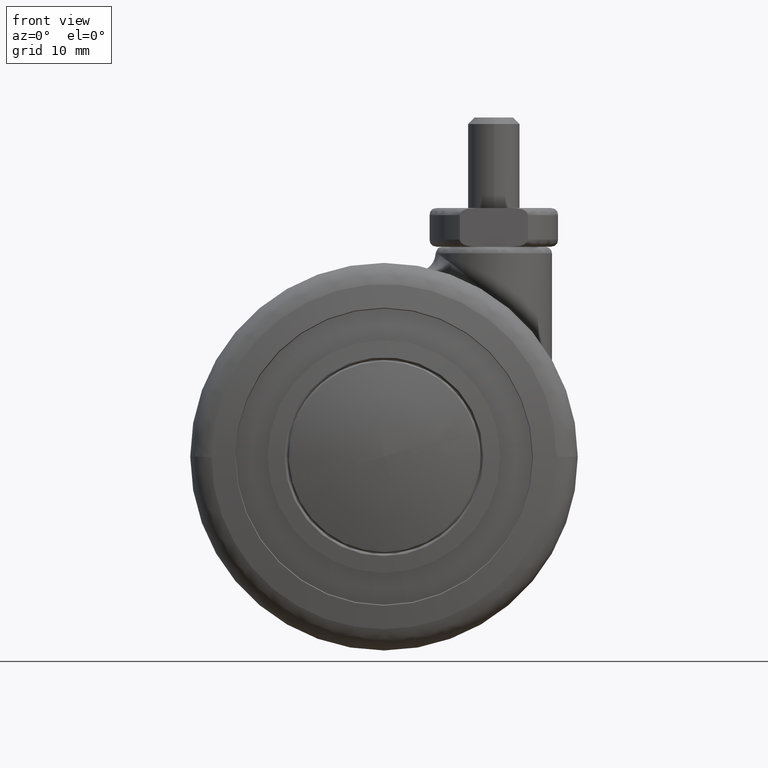
[diagram: clean part render]
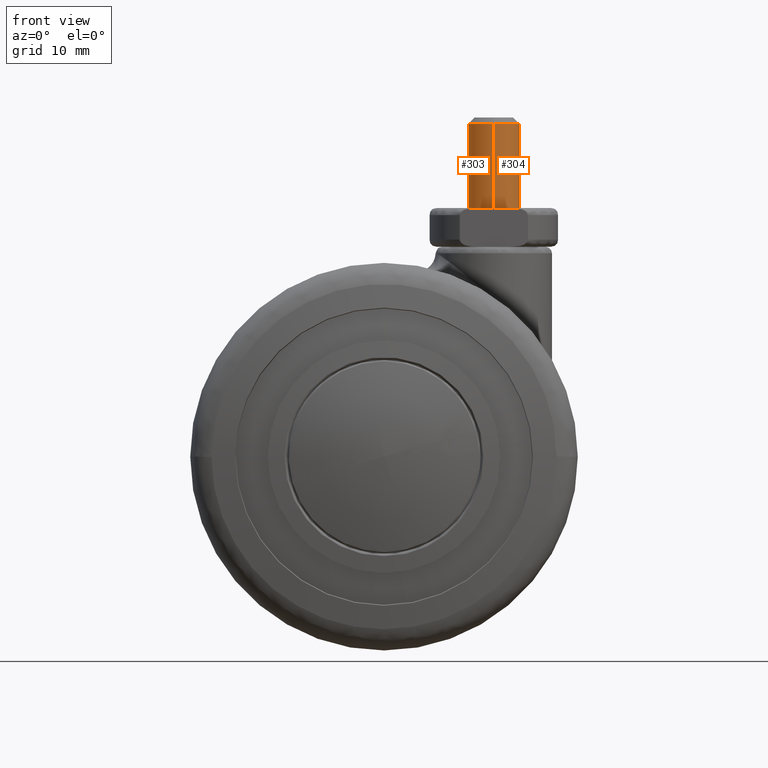
[diagram: same view with one multi-face feature highlighted, each face labeled with its STEP entity id]
A machine part, front view. The highlighted faces form ONE feature: a constant-radius fillet chain: 2 tangent blend faces with common blend radius 4 mm. The faces share edges in the B-rep.
Their STEP definitions:
[1] entity #303 (Cylinder):
#303=ADVANCED_FACE('',(#1776),#1775,.T.);
#1775=CYLINDRICAL_SURFACE('',#4466,4.00000000000E+00);
#1776=FACE_OUTER_BOUND('',#4467,.T.);
#4463=CARTESIAN_POINT('',(1.41500000060E+01,0.00000000000E+00,0.00000000000E+00));
#4464=DIRECTION('',(-1.00000000000E+00,-0.00000000000E+00,0.00000000000E+00));
#4465=DIRECTION('',(0.00000000000E+00,-0.00000000000E+00,1.00000000000E+00));
#4466=AXIS2_PLACEMENT_3D('',#4463,#4464,#4465);
#4467=EDGE_LOOP('',(#5205,#5206,#5207,#5208));
#5205=ORIENTED_EDGE('',*,*,#5578,.T.);
#5206=ORIENTED_EDGE('',*,*,#5579,.F.);
#5207=ORIENTED_EDGE('',*,*,#5507,.F.);
#5208=ORIENTED_EDGE('',*,*,#5580,.T.);
#5507=EDGE_CURVE('',#7488,#7489,#7490,.T.);
#5578=EDGE_CURVE('',#7958,#7959,#7960,.T.);
#5579=EDGE_CURVE('',#7489,#7959,#7966,.T.);
#5580=EDGE_CURVE('',#7488,#7958,#7972,.T.);
#7488=VERTEX_POINT('',#9550);
#7489=VERTEX_POINT('',#9551);
#7490=CIRCLE('',#9555,4.00000000000E+00);
#7958=VERTEX_POINT('',#10000);
#7959=VERTEX_POINT('',#10001);
#7960=CIRCLE('',#10005,4.00000000000E+00);
#7966=(BOUNDED_CURVE() B_SPLINE_CURVE(1,(#10006,#10007),.UNSPECIFIED.,.F.,.F.) B_SPLINE_CURVE_WITH_KNOTS((2,2),(8.33333343261E-02,9.16666667006E-01),.UNSPECIFIED.) CURVE() GEOMETRIC_REPRESENTATION_ITEM() RATIONAL_B_SPLINE_CURVE((1.00000000000E+00,1.00000000000E+00)) REPRESENTATION_ITEM('') );
#7972=(BOUNDED_CURVE() B_SPLINE_CURVE(1,(#10008,#10009),.UNSPECIFIED.,.F.,.F.) B_SPLINE_CURVE_WITH_KNOTS((2,2),(8.33333333333E-02,9.16666666667E-01),.UNSPECIFIED.) CURVE() GEOMETRIC_REPRESENTATION_ITEM() RATIONAL_B_SPLINE_CURVE((7.50000000000E-01,7.50000000000E-01)) REPRESENTATION_ITEM('') );
#9550=CARTESIAN_POINT('',(-6.00000000000E+00,0.00000000000E+00,-4.00000000000E+00));
#9551=CARTESIAN_POINT('',(-6.00000000000E+00,4.44089209850E-16,4.00000000000E+00));
#9552=CARTESIAN_POINT('',(-6.00000000000E+00,0.00000000000E+00,0.00000000000E+00));
#9553=DIRECTION('',(1.00000000000E+00,0.00000000000E+00,0.00000000000E+00));
#9554=DIRECTION('',(0.00000000000E+00,-1.22460635382E-16,-1.00000000000E+00));
#9555=AXIS2_PLACEMENT_3D('',#9552,#9553,#9554);
#10000=CARTESIAN_POINT('',(-1.90000000000E+01,0.00000000000E+00,-4.00000000000E+00));
#10001=CARTESIAN_POINT('',(-1.90000000000E+01,4.44089209850E-16,4.00000000000E+00));
#10002=CARTESIAN_POINT('',(-1.90000000000E+01,0.00000000000E+00,0.00000000000E+00));
#10003=DIRECTION('',(1.00000000000E+00,0.00000000000E+00,0.00000000000E+00));
#10004=DIRECTION('',(0.00000000000E+00,-1.22460635382E-16,-1.00000000000E+00));
#10005=AXIS2_PLACEMENT_3D('',#10002,#10003,#10004);
#10006=CARTESIAN_POINT('',(-6.00000001549E+00,0.00000000000E+00,4.00000000000E+00));
#10007=CARTESIAN_POINT('',(-1.90000000053E+01,0.00000000000E+00,4.00000000000E+00));
#10008=CARTESIAN_POINT('',(-6.00000000000E+00,-1.48029736617E-16,-4.00000000000E+00));
#10009=CARTESIAN_POINT('',(-1.90000000000E+01,-1.48029736617E-16,-4.00000000000E+00));
[2] entity #304 (Cylinder):
#304=ADVANCED_FACE('',(#1786),#1785,.T.);
#1785=CYLINDRICAL_SURFACE('',#4471,4.00000000000E+00);
#1786=FACE_OUTER_BOUND('',#4472,.T.);
#4468=CARTESIAN_POINT('',(1.41500000060E+01,0.00000000000E+00,0.00000000000E+00));
#4469=DIRECTION('',(-1.00000000000E+00,-0.00000000000E+00,0.00000000000E+00));
#4470=DIRECTION('',(0.00000000000E+00,-0.00000000000E+00,1.00000000000E+00));
#4471=AXIS2_PLACEMENT_3D('',#4468,#4469,#4470);
#4472=EDGE_LOOP('',(#5209,#5210,#5211,#5212));
#5209=ORIENTED_EDGE('',*,*,#5508,.F.);
#5210=ORIENTED_EDGE('',*,*,#5579,.T.);
#5211=ORIENTED_EDGE('',*,*,#5581,.T.);
#5212=ORIENTED_EDGE('',*,*,#5580,.F.);
#5508=EDGE_CURVE('',#7489,#7488,#7496,.T.);
#5579=EDGE_CURVE('',#7489,#7959,#7966,.T.);
#5580=EDGE_CURVE('',#7488,#7958,#7972,.T.);
#5581=EDGE_CURVE('',#7959,#7958,#7978,.T.);
#7488=VERTEX_POINT('',#9550);
#7489=VERTEX_POINT('',#9551);
#7496=CIRCLE('',#9559,4.00000000000E+00);
#7958=VERTEX_POINT('',#10000);
#7959=VERTEX_POINT('',#10001);
#7966=(BOUNDED_CURVE() B_SPLINE_CURVE(1,(#10006,#10007),.UNSPECIFIED.,.F.,.F.) B_SPLINE_CURVE_WITH_KNOTS((2,2),(8.33333343261E-02,9.16666667006E-01),.UNSPECIFIED.) CURVE() GEOMETRIC_REPRESENTATION_ITEM() RATIONAL_B_SPLINE_CURVE((1.00000000000E+00,1.00000000000E+00)) REPRESENTATION_ITEM('') );
#7972=(BOUNDED_CURVE() B_SPLINE_CURVE(1,(#10008,#10009),.UNSPECIFIED.,.F.,.F.) B_SPLINE_CURVE_WITH_KNOTS((2,2),(8.33333333333E-02,9.16666666667E-01),.UNSPECIFIED.) CURVE() GEOMETRIC_REPRESENTATION_ITEM() RATIONAL_B_SPLINE_CURVE((7.50000000000E-01,7.50000000000E-01)) REPRESENTATION_ITEM('') );
#7978=CIRCLE('',#10013,4.00000000000E+00);
#9550=CARTESIAN_POINT('',(-6.00000000000E+00,0.00000000000E+00,-4.00000000000E+00));
#9551=CARTESIAN_POINT('',(-6.00000000000E+00,4.44089209850E-16,4.00000000000E+00));
#9556=CARTESIAN_POINT('',(-6.00000000000E+00,0.00000000000E+00,0.00000000000E+00));
#9557=DIRECTION('',(1.00000000000E+00,0.00000000000E+00,0.00000000000E+00));
#9558=DIRECTION('',(0.00000000000E+00,-1.22460635382E-16,-1.00000000000E+00));
#9559=AXIS2_PLACEMENT_3D('',#9556,#9557,#9558);
#10000=CARTESIAN_POINT('',(-1.90000000000E+01,0.00000000000E+00,-4.00000000000E+00));
#10001=CARTESIAN_POINT('',(-1.90000000000E+01,4.44089209850E-16,4.00000000000E+00));
#10006=CARTESIAN_POINT('',(-6.00000001549E+00,0.00000000000E+00,4.00000000000E+00));
#10007=CARTESIAN_POINT('',(-1.90000000053E+01,0.00000000000E+00,4.00000000000E+00));
#10008=CARTESIAN_POINT('',(-6.00000000000E+00,-1.48029736617E-16,-4.00000000000E+00));
#10009=CARTESIAN_POINT('',(-1.90000000000E+01,-1.48029736617E-16,-4.00000000000E+00));
#10010=CARTESIAN_POINT('',(-1.90000000000E+01,0.00000000000E+00,0.00000000000E+00));
#10011=DIRECTION('',(1.00000000000E+00,0.00000000000E+00,0.00000000000E+00));
#10012=DIRECTION('',(0.00000000000E+00,-1.22460635382E-16,-1.00000000000E+00));
#10013=AXIS2_PLACEMENT_3D('',#10010,#10011,#10012);